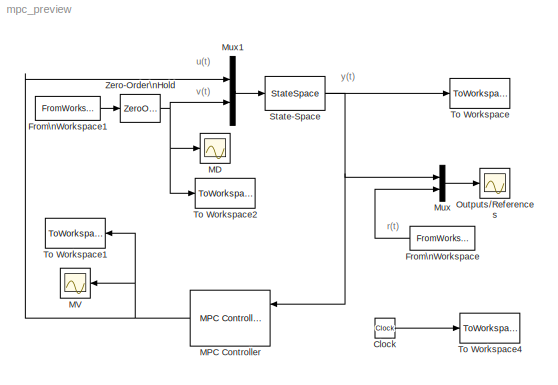
MODEL mpc_preview
KIND model
BLOCK [Clock] Clock
  Decimation = 10
BLOCK [FromWorkspace] From\nWorkspace
  OutputAfterFinalValue = Holding final value
  SampleTime = 0
  VariableName = ref
BLOCK [FromWorkspace] From\nWorkspace1
  OutputAfterFinalValue = Holding final value
  SampleTime = 0
  VariableName = md
BLOCK [Scope] MD
  DataFormat = Structure
  NumInputPorts = 1
  Ports = [1]
  TimeRange = 30
  YMax = 0
  YMin = -1
  ZoomMode = yonly
BLOCK [Reference] MPC Controller  REF=mpclib/MPC Controller  (lib defined in mdl_ae329e0e0455)
  Ports = [3, 1]
  ShowPortLabels = on
  SourceBlock = mpclib/MPC Controller
  SourceType = MPC
  from_project = off
  md_from_ws = on
  md_inport = on
  md_preview = on
  md_signal_name = md
  mpcobj = mpc1
  n_mv = 0
  project_file = MPCtask.mat
  ref_from_ws = on
  ref_preview = on
  ref_signal_name = ref
  x0 = []
BLOCK [Scope] MV
  DataFormat = Structure
  NumInputPorts = 1
  Ports = [1]
  TimeRange = 30
  YMax = 2.5
  YMin = -0.5
  ZoomMode = yonly
BLOCK [Mux] Mux
  DisplayOption = bar
  Inputs = 2
  Ports = [2, 1]
BLOCK [Mux] Mux1
  DisplayOption = bar
  Inputs = 2
  Ports = [2, 1]
BLOCK [Scope] Outputs//References
  DataFormat = Structure
  NumInputPorts = 1
  Ports = [1]
  TimeRange = 30
  YMax = 1.5
  YMin = -0.5
BLOCK [StateSpace] State-Space
  A = A
  B = B
  C = C
  D = D
BLOCK [ToWorkspace] To Workspace
  MaxDataPoints = Inf
  SampleTime = -1
  SaveFormat = Array
  VariableName = y
BLOCK [ToWorkspace] To Workspace1
  MaxDataPoints = Inf
  SampleTime = -1
  SaveFormat = Array
  VariableName = u
BLOCK [ToWorkspace] To Workspace2
  MaxDataPoints = Inf
  SampleTime = -1
  SaveFormat = Array
  VariableName = v
BLOCK [ToWorkspace] To Workspace4
  MaxDataPoints = Inf
  SampleTime = -1
  SaveFormat = Array
  VariableName = t
BLOCK [ZeroOrderHold] Zero-Order\nHold
  SampleTime = Ts
ANNOTATION (root): r(t)
ANNOTATION (root): u(t)
ANNOTATION (root): v(t)
ANNOTATION (root): y(t)
LINE Clock:1 -> To Workspace4:1
LINE From\nWorkspace1:1 -> Zero-Order\nHold:1
LINE From\nWorkspace:1 -> Mux:2
NET MPC Controller:1 -> MV:1, Mux1:1, To Workspace1:1
LINE Mux1:1 -> State-Space:1
LINE Mux:1 -> Outputs//References:1
NET State-Space:1 -> MPC Controller:1, Mux:1, To Workspace:1
NET Zero-Order\nHold:1 -> MD:1, Mux1:2, To Workspace2:1
note: NET lines group one-source signal fan-out (src -> all destinations, sorted); 1:1 wires keep LINE
